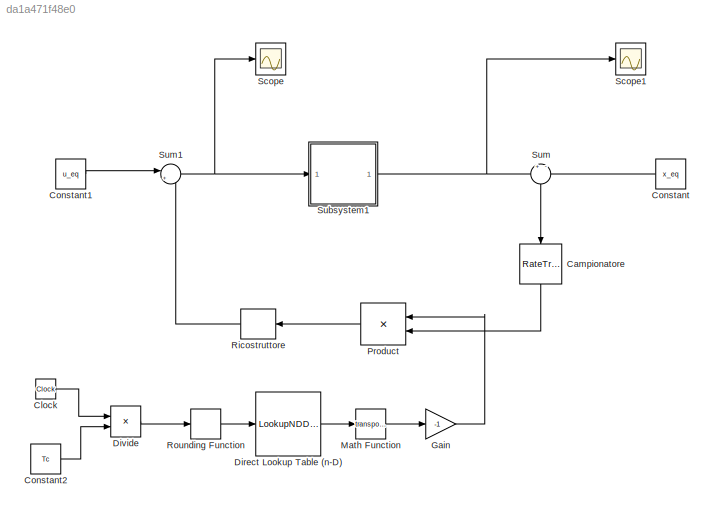
MODEL slx_da1a471f48e0
KIND model
CONFIG AbsTol = auto
CONFIG EnableMultiTasking = off
CONFIG FixedStep = auto
CONFIG MaxStep = auto
CONFIG MinStep = auto
CONFIG RelTol = 1e-3
CONFIG SampleTimeConstraint = Unconstrained
CONFIG SolverName = VariableStepAuto
CONFIG StartTime = 0.0
CONFIG StopTime = tsim
BLOCK [RateTransition] Campionatore
  NameLocation = left
  OutPortSampleTime = Tc
BLOCK [Clock] Clock
BLOCK [Constant] Constant
  Value = x_eq
BLOCK [Constant] Constant1
  Value = u_eq
BLOCK [Constant] Constant2
  Value = Tc
BLOCK [LookupNDDirect] Direct Lookup Table (n-D)
  InputsSelectThisObjectFromTable = Vector
  Ports = [1, 1]
  Table = F'
BLOCK [Product] Divide
  Inputs = */
  Ports = [2, 1]
BLOCK [Gain] Gain
  Gain = -1
BLOCK [Math] Math Function
  Operator = transpose
  Ports = [1, 1]
BLOCK [Product] Product
  Multiplication = Matrix(*)
  Ports = [2, 1]
BLOCK [ZeroOrderHold] Ricostruttore
  SampleTime = -1
BLOCK [Rounding] Rounding Function
  Operator = round
BLOCK [Scope] Scope
  Floating = off
  NumInputPorts = 1
  Ports = [1]
  ScopeSpecificationString = Simulink.scopes.TimeScopeBlockCfg('CurrentConfiguration', extmgr.ConfigurationSet(extmgr.Configuration('Core','General UI',true),extmgr.Configuration('Core','Source UI',true),extmgr.Configuration('Sources','WiredSimulink',true),extmgr.Configuration('Visuals','Time Domain',true,'SerializedDisplays',{struct('MinYLimReal','-23428.34539','MaxYLimReal','80725.27955','YLabelReal','','MinYLimMag','   0.0...<+1406ch>
BLOCK [Scope] Scope1
  Floating = off
  NumInputPorts = 1
  Ports = [1]
  ScopeSpecificationString = Simulink.scopes.TimeScopeBlockCfg('CurrentConfiguration', extmgr.ConfigurationSet(extmgr.Configuration('Core','General UI',true),extmgr.Configuration('Core','Source UI',true),extmgr.Configuration('Sources','WiredSimulink',true,'DataLoggingVariableName','stati','DataLogging',true,'DataLoggingSaveFormat','StructureWithTime'),extmgr.Configuration('Visuals','Time Domain',true,'SerializedDisplays',{str...<+1708ch>
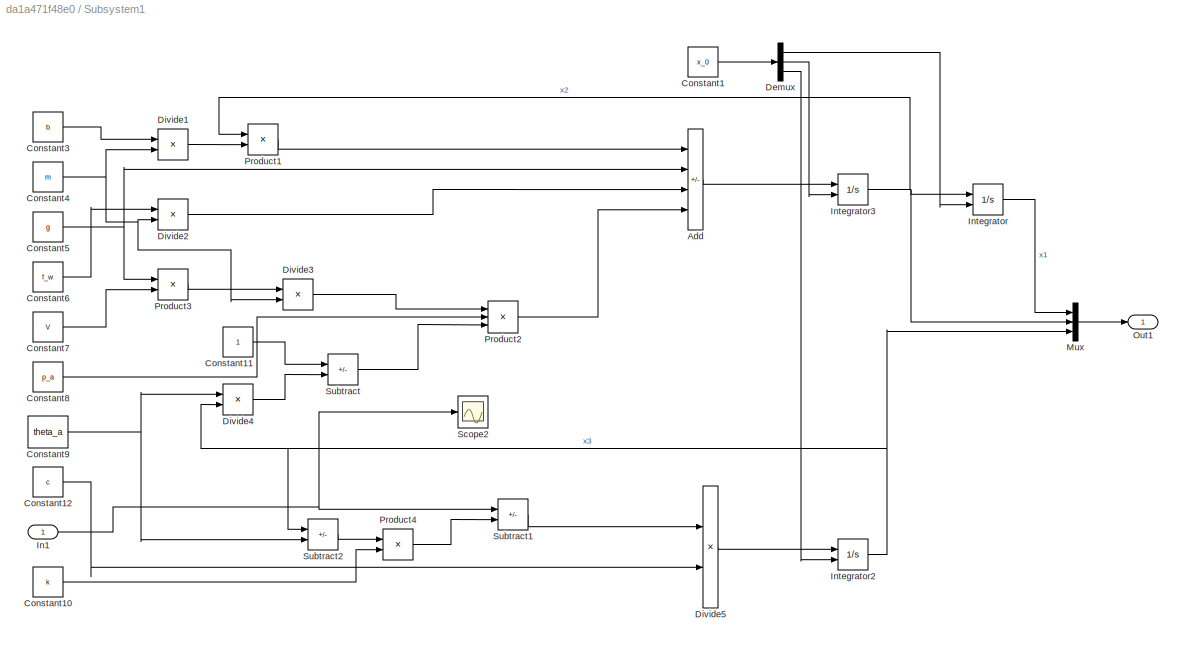
BLOCK [SubSystem] Subsystem1
  Ports = [1, 1]
  RequestExecContextInheritance = off
BLOCK [Sum] Subsystem1/Add
  IconShape = rectangular
  Inputs = --++
  Ports = [4, 1]
BLOCK [Constant] Subsystem1/Constant1
  Value = x_0
BLOCK [Constant] Subsystem1/Constant10
  Value = k
BLOCK [Constant] Subsystem1/Constant11
BLOCK [Constant] Subsystem1/Constant12
  Value = c
BLOCK [Constant] Subsystem1/Constant3
  Value = b
BLOCK [Constant] Subsystem1/Constant4
  Value = m
BLOCK [Constant] Subsystem1/Constant5
  Value = g
BLOCK [Constant] Subsystem1/Constant6
  Value = f_w
BLOCK [Constant] Subsystem1/Constant7
  Value = V
BLOCK [Constant] Subsystem1/Constant8
  Value = p_a
BLOCK [Constant] Subsystem1/Constant9
  Value = theta_a
BLOCK [Demux] Subsystem1/Demux
  Outputs = 3
  Ports = [1, 3]
BLOCK [Product] Subsystem1/Divide1
  Inputs = */
  Ports = [2, 1]
BLOCK [Product] Subsystem1/Divide2
  Inputs = */
  Ports = [2, 1]
BLOCK [Product] Subsystem1/Divide3
  Inputs = */
  Ports = [2, 1]
BLOCK [Product] Subsystem1/Divide4
  Inputs = */
  Ports = [2, 1]
BLOCK [Product] Subsystem1/Divide5
  Inputs = */
  Ports = [2, 1]
BLOCK [Inport] Subsystem1/In1
BLOCK [Integrator] Subsystem1/Integrator
  InitialCondition = 680
  InitialConditionSource = external
  Ports = [2, 1]
BLOCK [Integrator] Subsystem1/Integrator2
  InitialCondition = 200
  InitialConditionSource = external
  Ports = [2, 1]
BLOCK [Integrator] Subsystem1/Integrator3
  InitialConditionSource = external
  Ports = [2, 1]
BLOCK [Mux] Subsystem1/Mux
  DisplayOption = bar
  Inputs = 3
  Ports = [3, 1]
BLOCK [Outport] Subsystem1/Out1
BLOCK [Product] Subsystem1/Product1
  Ports = [2, 1]
BLOCK [Product] Subsystem1/Product2
  Inputs = 3
  Ports = [3, 1]
BLOCK [Product] Subsystem1/Product3
  Ports = [2, 1]
BLOCK [Product] Subsystem1/Product4
  Ports = [2, 1]
BLOCK [Scope] Subsystem1/Scope2
  Floating = off
  NumInputPorts = 1
  Ports = [1]
  ScopeSpecificationString = Simulink.scopes.TimeScopeBlockCfg('CurrentConfiguration', extmgr.ConfigurationSet(extmgr.Configuration('Core','General UI',true),extmgr.Configuration('Core','Source UI',true),extmgr.Configuration('Sources','WiredSimulink',true,'DataLoggingVariableName','ScopeData1'),extmgr.Configuration('Visuals','Time Domain',true,'SerializedDisplays',{struct('MinYLimReal','0.17782','MaxYLimReal','0.37782','YLabe...<+1499ch>
BLOCK [Sum] Subsystem1/Subtract
  IconShape = rectangular
  Inputs = +-
  Ports = [2, 1]
BLOCK [Sum] Subsystem1/Subtract1
  IconShape = rectangular
  Inputs = +-
  Ports = [2, 1]
BLOCK [Sum] Subsystem1/Subtract2
  IconShape = rectangular
  Inputs = +-
  Ports = [2, 1]
BLOCK [Sum] Sum
  Inputs = +|-
  NameLocation = left
  Ports = [2, 1]
BLOCK [Sum] Sum1
  Inputs = |++
  Ports = [2, 1]
LINE Campionatore:1 -> Product:2
LINE Clock:1 -> Divide:1
LINE Constant1:1 -> Sum1:1
LINE Constant2:1 -> Divide:2
LINE Constant:1 -> Sum:2
LINE Direct Lookup Table (n-D):1 -> Math Function:1
LINE Divide:1 -> Rounding Function:1
LINE Gain:1 -> Product:1
LINE Math Function:1 -> Gain:1
LINE Product:1 -> Ricostruttore:1
LINE Ricostruttore:1 -> Sum1:2
LINE Rounding Function:1 -> Direct Lookup Table (n-D):1
LINE Subsystem1/Add:1 -> Subsystem1/Integrator3:1
LINE Subsystem1/Constant10:1 -> Subsystem1/Product4:2
LINE Subsystem1/Constant11:1 -> Subsystem1/Subtract:1
LINE Subsystem1/Constant12:1 -> Subsystem1/Divide5:2
LINE Subsystem1/Constant1:1 -> Subsystem1/Demux:1
LINE Subsystem1/Constant3:1 -> Subsystem1/Divide1:1
NET Subsystem1/Constant4:1 -> Subsystem1/Divide1:2, Subsystem1/Divide2:2, Subsystem1/Divide3:2
NET Subsystem1/Constant5:1 -> Subsystem1/Add:2, Subsystem1/Product3:1
LINE Subsystem1/Constant6:1 -> Subsystem1/Divide2:1
LINE Subsystem1/Constant7:1 -> Subsystem1/Product3:2
LINE Subsystem1/Constant8:1 -> Subsystem1/Product2:2
NET Subsystem1/Constant9:1 -> Subsystem1/Divide4:1, Subsystem1/Subtract2:2
LINE Subsystem1/Demux:1 -> Subsystem1/Integrator:2
LINE Subsystem1/Demux:2 -> Subsystem1/Integrator3:2
LINE Subsystem1/Demux:3 -> Subsystem1/Integrator2:2
LINE Subsystem1/Divide1:1 -> Subsystem1/Product1:2
LINE Subsystem1/Divide2:1 -> Subsystem1/Add:3
LINE Subsystem1/Divide3:1 -> Subsystem1/Product2:1
LINE Subsystem1/Divide4:1 -> Subsystem1/Subtract:2
LINE Subsystem1/Divide5:1 -> Subsystem1/Integrator2:1
NET Subsystem1/In1:1 -> Subsystem1/Scope2:1, Subsystem1/Subtract1:1
NET Subsystem1/Integrator2:1 -> Subsystem1/Divide4:2, Subsystem1/Mux:3, Subsystem1/Subtract2:1
NET Subsystem1/Integrator3:1 -> Subsystem1/Integrator:1, Subsystem1/Mux:2, Subsystem1/Product1:1
LINE Subsystem1/Integrator:1 -> Subsystem1/Mux:1
LINE Subsystem1/Mux:1 -> Subsystem1/Out1:1
LINE Subsystem1/Product1:1 -> Subsystem1/Add:1
LINE Subsystem1/Product2:1 -> Subsystem1/Add:4
LINE Subsystem1/Product3:1 -> Subsystem1/Divide3:1
LINE Subsystem1/Product4:1 -> Subsystem1/Subtract1:2
LINE Subsystem1/Subtract1:1 -> Subsystem1/Divide5:1
LINE Subsystem1/Subtract2:1 -> Subsystem1/Product4:1
LINE Subsystem1/Subtract:1 -> Subsystem1/Product2:3
NET Subsystem1:1 -> Scope1:1, Sum:1
NET Sum1:1 -> Scope:1, Subsystem1:1
LINE Sum:1 -> Campionatore:1
note: NET lines group one-source signal fan-out (src -> all destinations, sorted); 1:1 wires keep LINE
